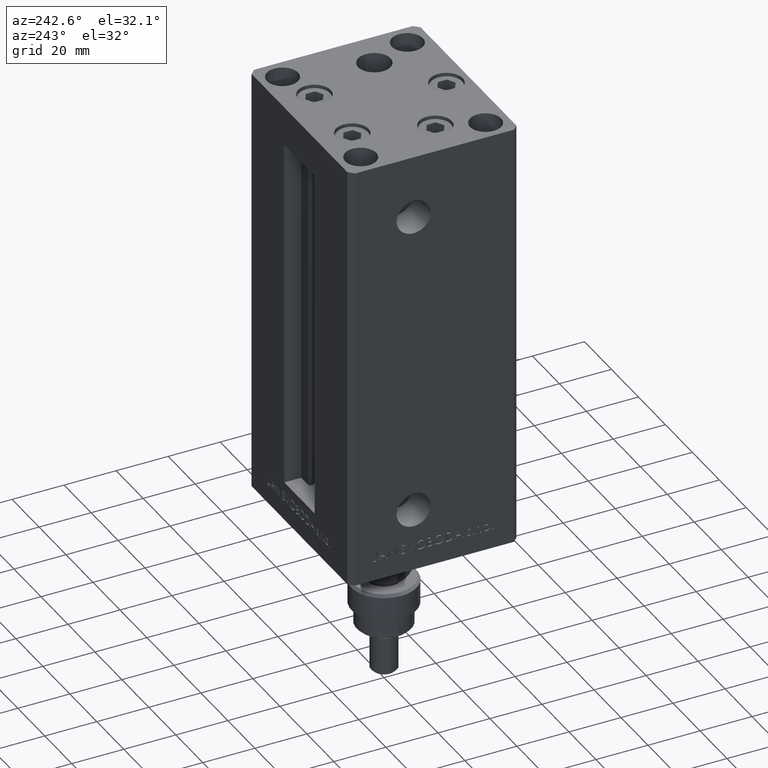
[diagram: clean part render]
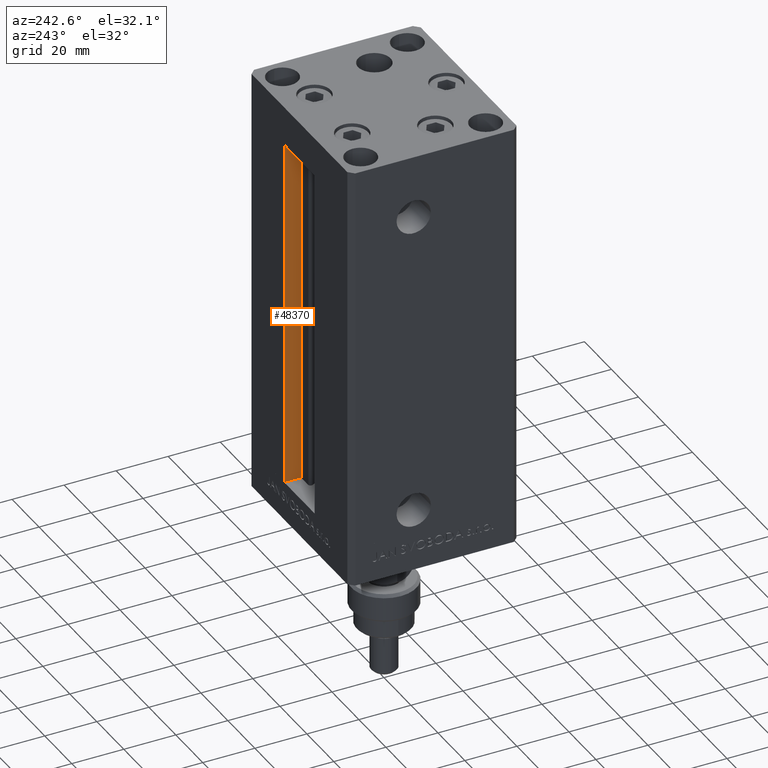
[diagram: same view with one face highlighted and labeled with its STEP entity id]
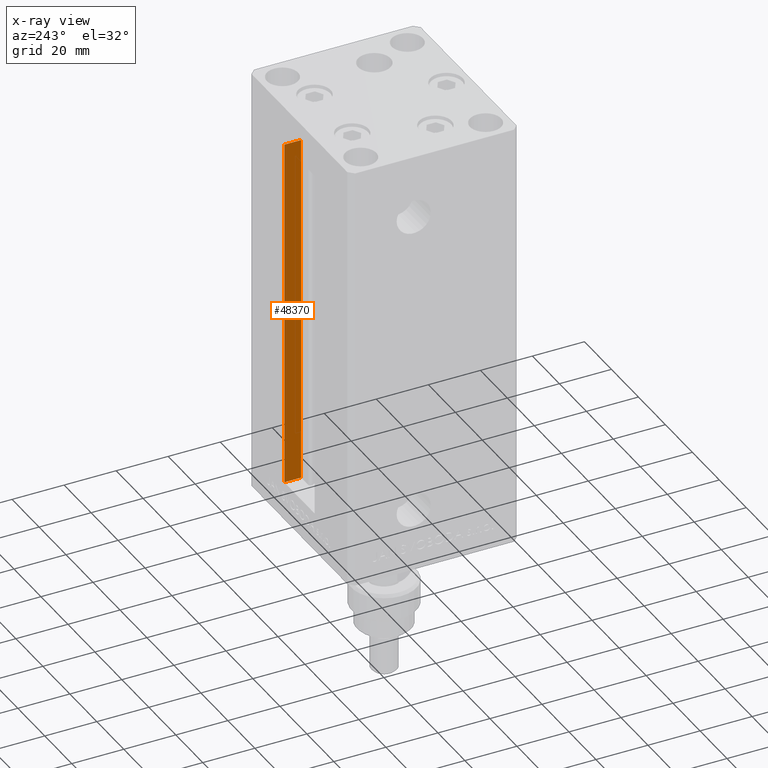
[diagram: x-ray of the same camera — body ghosted, the highlighted face saturated]
A machine part, auxiliary view. The second image highlights one B-rep face of the part: STEP entity #48370.
The next image is the same camera in x-ray: the body ghosted, the highlighted face saturated — about 0% of this face is hidden behind the body in this view.
In plain terms, the highlighted planar face has unit normal (1, 0, 0).
Its self-contained STEP definition (entity closure, byte-faithful):
#67 = CARTESIAN_POINT ( 'NONE',  ( 11.25000000000000178, 25.99999999999999289, 0.000000000000000000 ) ) ;
#257 = AXIS2_PLACEMENT_3D ( 'NONE', #23905, #36110, #7956 ) ;
#7269 = ORIENTED_EDGE ( 'NONE', *, *, #39294, .T. ) ;
#7956 = DIRECTION ( 'NONE',  ( 0.000000000000000000, 0.000000000000000000, -1.000000000000000000 ) ) ;
#8067 = CARTESIAN_POINT ( 'NONE',  ( 11.25000000000000178, 25.99999999999999289, 0.000000000000000000 ) ) ;
#10257 = DIRECTION ( 'NONE',  ( 0.000000000000000000, 1.000000000000000000, 0.000000000000000000 ) ) ;
#12779 = VECTOR ( 'NONE', #25454, 1000.000000000000000 ) ;
#14220 = EDGE_CURVE ( 'NONE', #36455, #45289, #32385, .T. ) ;
#15942 = FACE_OUTER_BOUND ( 'NONE', #21185, .T. ) ;
#17487 = CARTESIAN_POINT ( 'NONE',  ( 11.25000000000000178, 32.49999999999999289, 0.000000000000000000 ) ) ;
#17897 = EDGE_CURVE ( 'NONE', #46263, #36455, #38176, .T. ) ;
#21185 = EDGE_LOOP ( 'NONE', ( #47792, #23238, #7269, #37595 ) ) ;
#23238 = ORIENTED_EDGE ( 'NONE', *, *, #34149, .F. ) ;
#23556 = VECTOR ( 'NONE', #10257, 1000.000000000000000 ) ;
#23590 = VECTOR ( 'NONE', #43343, 1000.000000000000000 ) ;
#23905 = CARTESIAN_POINT ( 'NONE',  ( 11.25000000000000178, 25.99999999999999289, 0.000000000000000000 ) ) ;
#23964 = LINE ( 'NONE', #67, #23590 ) ;
#24966 = CARTESIAN_POINT ( 'NONE',  ( 11.25000000000000178, 25.99999999999999289, 136.0000000000000000 ) ) ;
#25454 = DIRECTION ( 'NONE',  ( -0.000000000000000000, -0.000000000000000000, 1.000000000000000000 ) ) ;
#26003 = CARTESIAN_POINT ( 'NONE',  ( 11.25000000000000178, 32.49999999999999289, 0.000000000000000000 ) ) ;
#26209 = LINE ( 'NONE', #45877, #23556 ) ;
#26226 = VECTOR ( 'NONE', #28671, 1000.000000000000000 ) ;
#27891 = PLANE ( 'NONE',  #257 ) ;
#28671 = DIRECTION ( 'NONE',  ( -0.000000000000000000, -1.000000000000000000, 0.000000000000000000 ) ) ;
#32385 = LINE ( 'NONE', #37395, #26226 ) ;
#34149 = EDGE_CURVE ( 'NONE', #47067, #46263, #26209, .T. ) ;
#36110 = DIRECTION ( 'NONE',  ( 1.000000000000000000, -0.000000000000000000, 0.000000000000000000 ) ) ;
#36455 = VERTEX_POINT ( 'NONE', #47805 ) ;
#37395 = CARTESIAN_POINT ( 'NONE',  ( 11.25000000000000178, 0.000000000000000000, 136.0000000000000000 ) ) ;
#37595 = ORIENTED_EDGE ( 'NONE', *, *, #14220, .F. ) ;
#38176 = LINE ( 'NONE', #17487, #12779 ) ;
#39294 = EDGE_CURVE ( 'NONE', #47067, #45289, #23964, .T. ) ;
#43343 = DIRECTION ( 'NONE',  ( -0.000000000000000000, -0.000000000000000000, 1.000000000000000000 ) ) ;
#45289 = VERTEX_POINT ( 'NONE', #24966 ) ;
#45877 = CARTESIAN_POINT ( 'NONE',  ( 11.25000000000000178, 25.99999999999999289, 0.000000000000000000 ) ) ;
#46263 = VERTEX_POINT ( 'NONE', #26003 ) ;
#47067 = VERTEX_POINT ( 'NONE', #8067 ) ;
#47792 = ORIENTED_EDGE ( 'NONE', *, *, #17897, .F. ) ;
#47805 = CARTESIAN_POINT ( 'NONE',  ( 11.24999999999999467, 32.49999999999999289, 136.0000000000000000 ) ) ;
#48370 = ADVANCED_FACE ( 'NONE', ( #15942 ), #27891, .F. ) ;